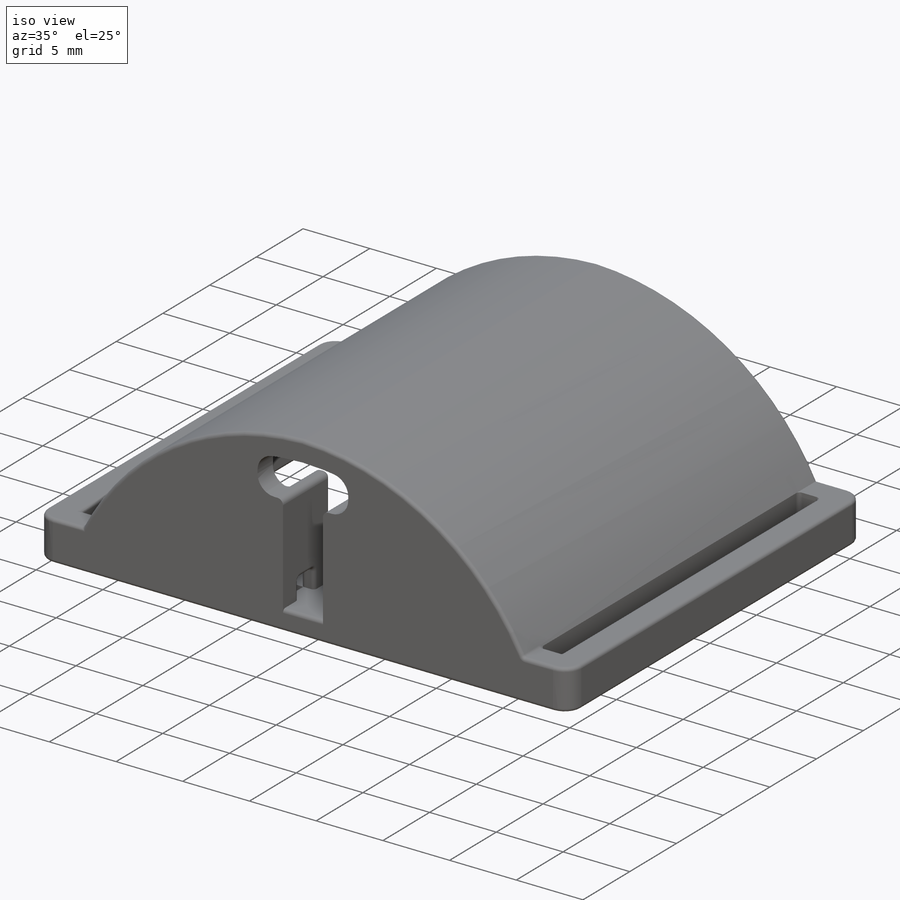
[diagram: iso view]
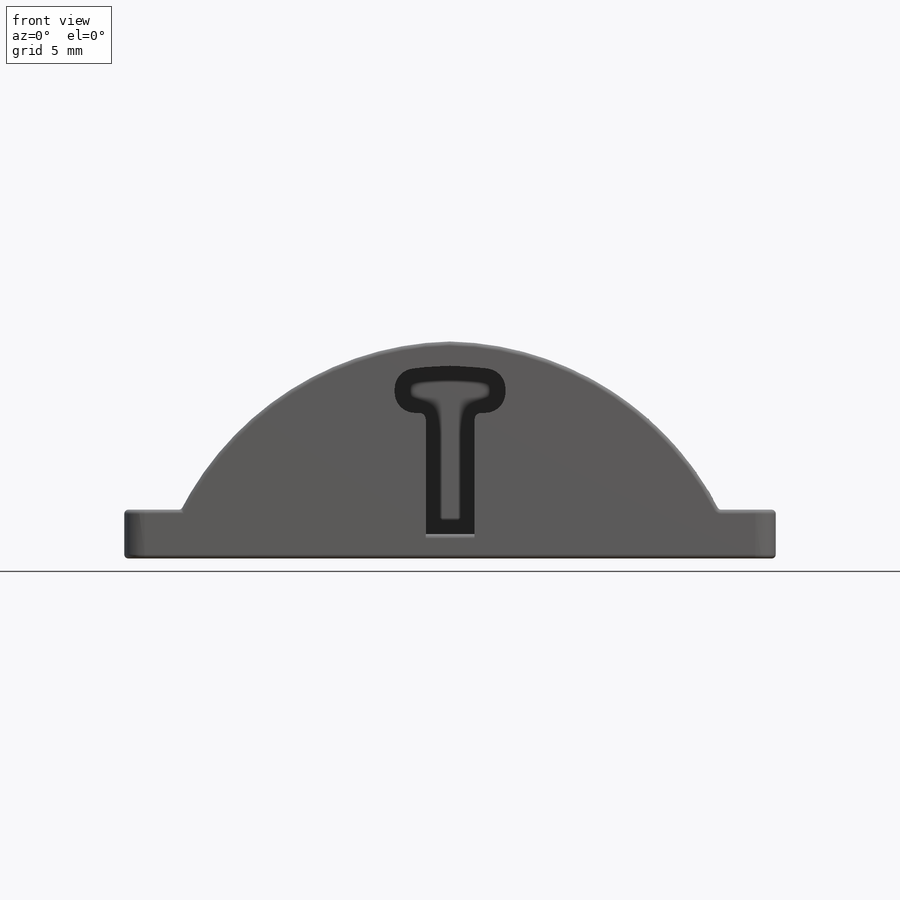
[diagram: front view]
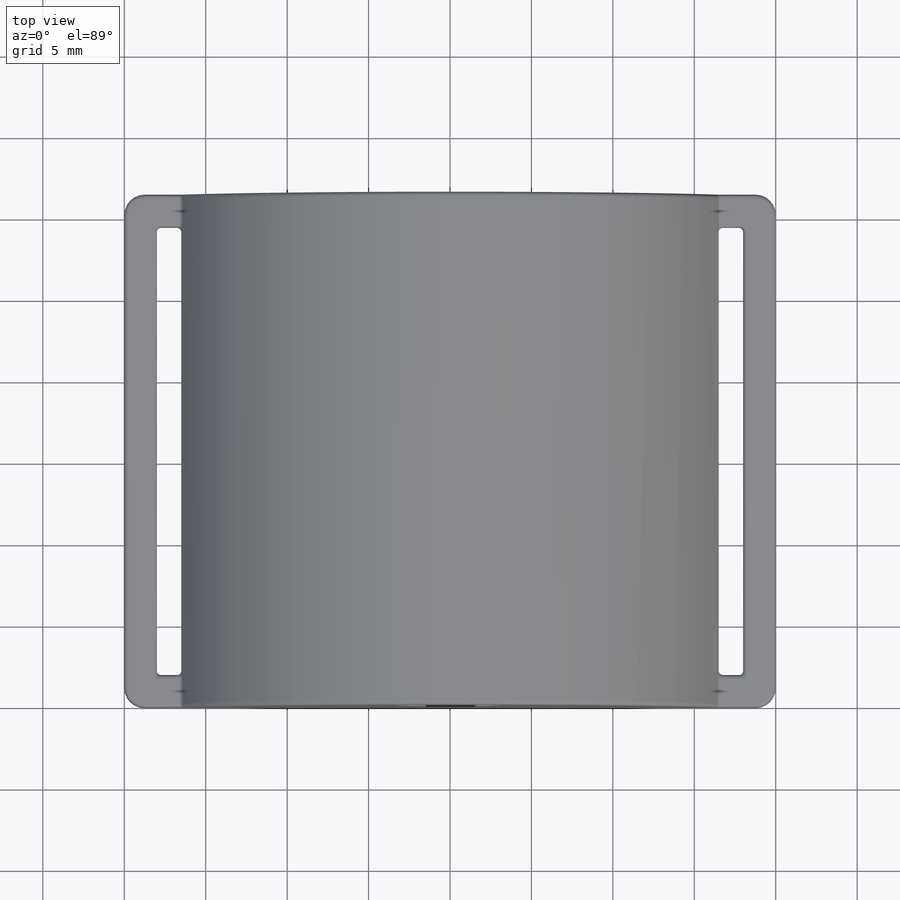
[diagram: top view]
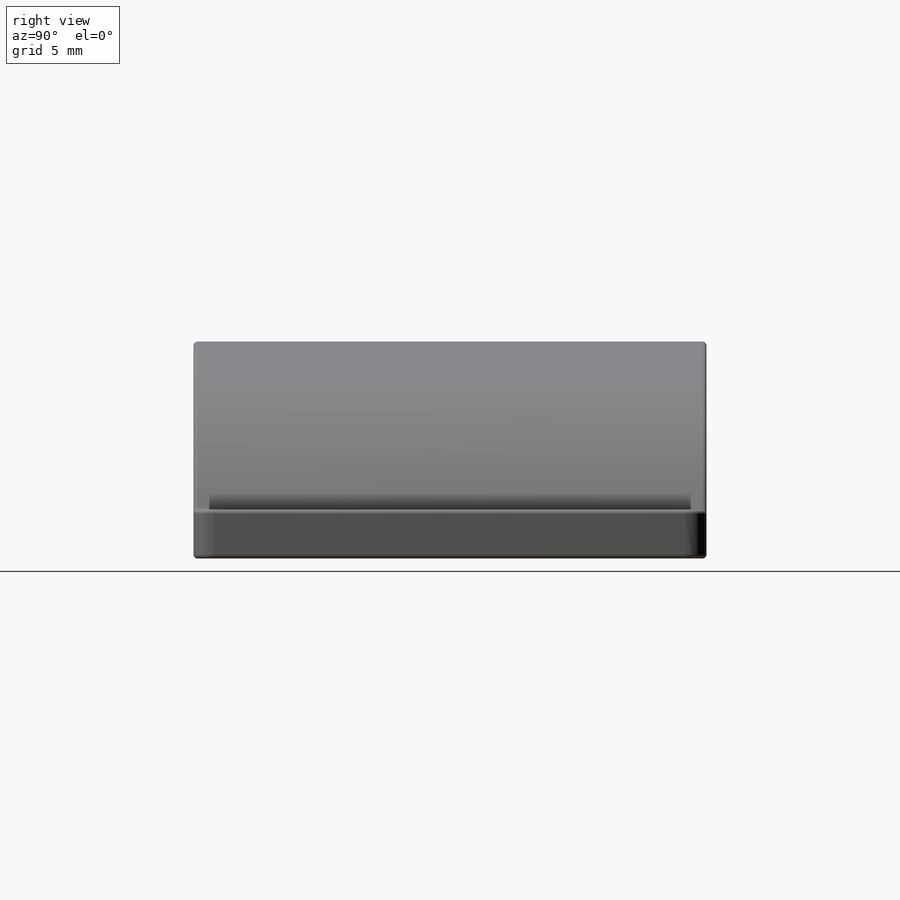
[diagram: right view]
SOLIDWORKS PART (.sldprt)
format: sldprt  version: not decoded by parser v0  size: 939,008 bytes
history: native  units: mm
features: sketch x14, cut_extrude x7, fillet x6, extrude x5, plane x3, thread x2, material x1, hole x1 (+12 scaffold rows collapsed)
feature tree (51):
  scaffold x12  (default folders/planes/origin — collapsed)
  material  "Material <not specified>"
  sketch  "Sketch1"  dims[c1.D2=~21.799151mm c1.D5=~24.032002mm c1.D6=~26.237703mm c1.D7=~18.631394mm c2.D2=27.0mm c2.D1=17.0mm c3.D2=7.0mm c3.D1=3.0mm c3.D3=3.5mm c4.D2=4.0mm c4.D4=1.5mm c4.D5=1.5mm c4.D6=1.5mm c5.D5=1.5mm c5.D2=1.5mm c5.D4=1.5mm c6.D5=~2.145829mm c6.D4=1.5mm c7.D5=20.0mm c7.D6=1.5mm]
  extrude  "Boss-Extrude1"  Depth=30mm
  sketch  "Sketch2"  dims[c1.D2=~4.891711mm c1.D1=4.0mm c2.D2=1.0mm c2.D3=3.0mm]
  extrude  "Boss-Extrude2"  Depth=5mm
  plane  "Plane1"
  sketch  "Sketch5"  dims[D1=0.87mm D2=2.5mm D3=~2.856434mm D4=2.5mm]
  cut_extrude  "Cut-Extrude2"  [1 undecoded]
  sketch  "Sketch6"  dims[D1=4.9698mm D2=4.9698mm D3=5.0mm]
  cut_extrude  "Cut-Extrude3"  [1 undecoded]
  plane  "Plane2"
  sketch  "Sketch7"  dims[c1.D1=~1.548127mm c1.D3=5.0mm c1.D4=4.0mm c2.D1=4.0mm c2.D2=9.373mm]
  extrude  "Boss-Extrude3"  Depth=6.4728mm
  sketch  "Sketch8"
  cut_extrude  "Cut-Extrude4"  Depth=10mm
  fillet  "Fillet1"  Radius=1mm
  hole  "M3x0.5 Tapped Hole1"  Diameter=2.5mm Depth=3mm
  sketch  "Sketch10"
  sketch  "Sketch9"  dims[hole-wizard template sketch: 50 standard entries collapsed; hole parameters above]
  thread  "Hole Thread5"  Diameter=0mm  [1 undecoded]
  thread  "Hole Thread6"  Diameter=0mm  [1 undecoded]
  sketch  "Sketch12"
  extrude  "Boss-Extrude5"  Depth=1.5mm
  sketch  "Sketch17"  dims[D1=0.5mm]
  cut_extrude  "Cut-Extrude9"  [1 undecoded]
  sketch  "Sketch18"  dims[D1=1.5mm D2=1.63mm]
  cut_extrude  "Cut-Extrude10"  [1 undecoded]
  plane  "Plane3"
  sketch  "Sketch15"  dims[D1=2.0mm D2=2.0mm D3=2.0mm]
  cut_extrude  "Cut-Extrude8"  [1 undecoded]
  fillet  "Fillet4"  Radius=1.25mm
  sketch  "Sketch16"
  extrude  "Boss-Extrude6"  [1 undecoded]
  sketch  "Sketch20"  dims[D1=1.25mm]
  cut_extrude  "Cut-Extrude13"  [1 undecoded]
  fillet  "Fillet7"  Radius=0.4mm
  fillet  "Fillet8"  Radius=0.25mm
  fillet  "Fillet9"  Radius=0.25mm
  fillet  "Fillet10"  Radius=0.25mm
decode coverage: 24 of 35 modeling features carry decoded parameters
note: ~ marks probable driven/reference dimensions
note: 9 parameter values undecoded
summary: no parameter record found for 7 features
note: suppression state not decoded; provenance and decode notes live in map.json
